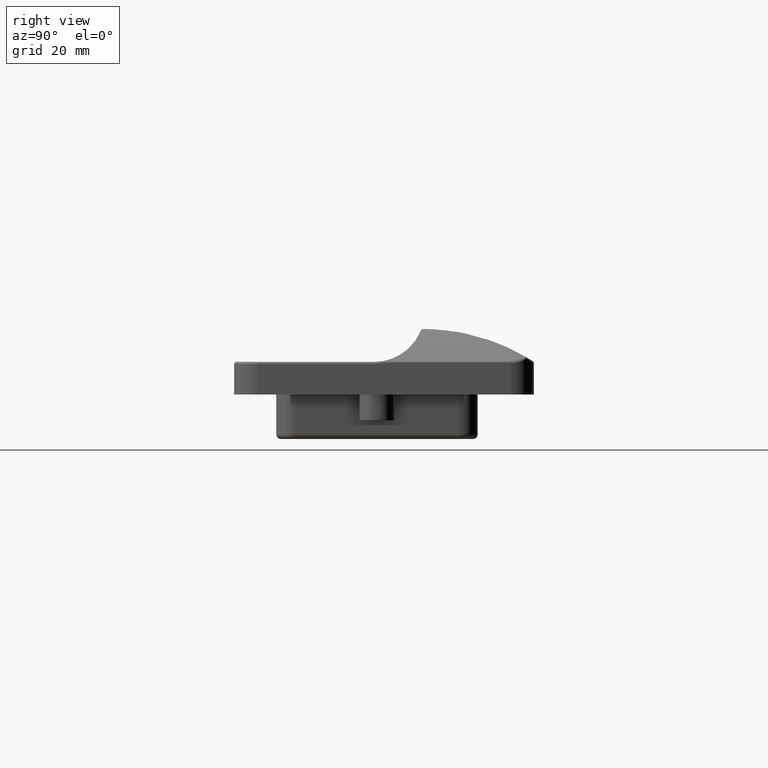
[diagram: clean part render]
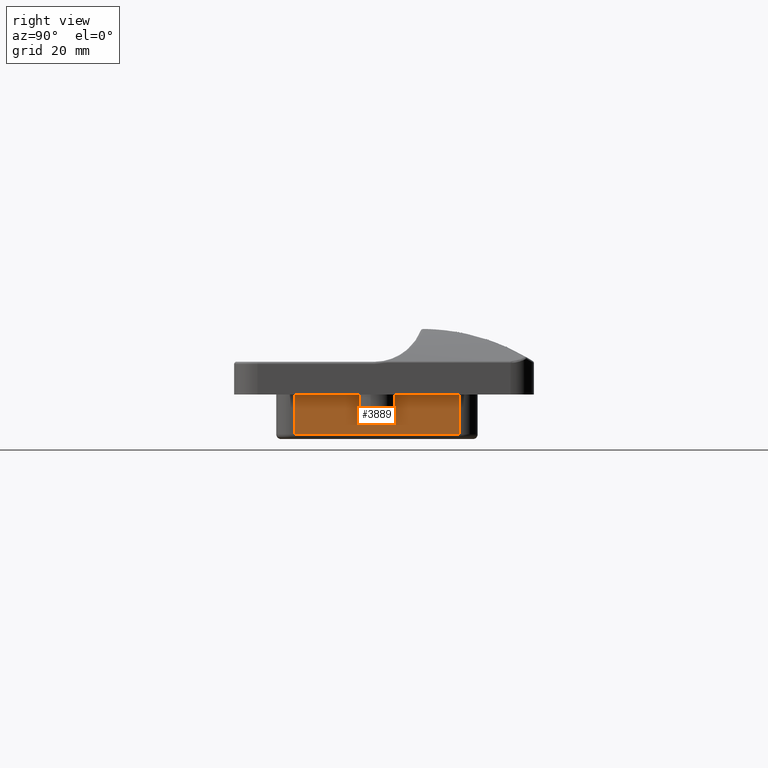
[diagram: same view with one face highlighted and labeled with its STEP entity id]
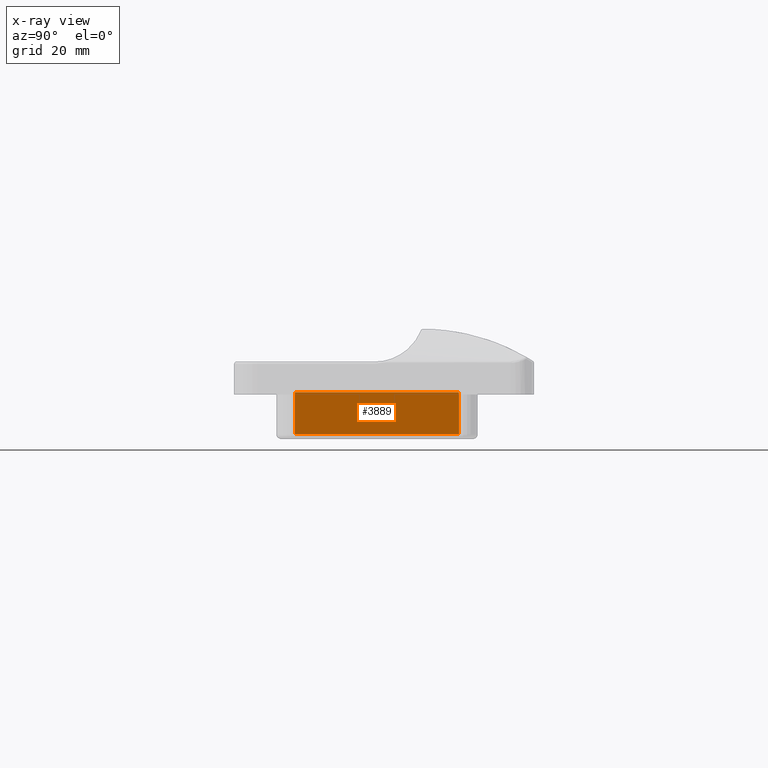
[diagram: x-ray of the same camera — body ghosted, the highlighted face saturated]
A machine part, right view. The second image highlights one B-rep face of the part: STEP entity #3889.
The next image is the same camera in x-ray: the body ghosted, the highlighted face saturated — about 0% of this face is hidden behind the body in this view.
In plain terms, the highlighted planar face has unit normal (1, -0, -0).
Its self-contained STEP definition (entity closure, byte-faithful):
#309=LINE('',#8077,#595);
#316=LINE('',#8160,#602);
#322=LINE('',#8210,#608);
#349=LINE('',#8305,#635);
#434=LINE('',#8544,#720);
#436=LINE('',#8548,#722);
#595=VECTOR('',#4934,8.78585453113767);
#602=VECTOR('',#4983,8.78586803612646);
#608=VECTOR('',#5009,17.4282774327358);
#635=VECTOR('',#5118,35.);
#720=VECTOR('',#5377,9.);
#722=VECTOR('',#5383,9.);
#804=PLANE('',#4295);
#1034=FACE_OUTER_BOUND('',#1278,.T.);
#1278=EDGE_LOOP('',(#3618,#3619,#3620,#3621,#3622,#3623));
#1807=VERTEX_POINT('',#8074);
#1808=VERTEX_POINT('',#8076);
#1813=VERTEX_POINT('',#8106);
#1821=VERTEX_POINT('',#8156);
#1849=VERTEX_POINT('',#8295);
#1851=VERTEX_POINT('',#8301);
#2285=EDGE_CURVE('',#1807,#1808,#309,.T.);
#2308=EDGE_CURVE('',#1813,#1821,#316,.T.);
#2320=EDGE_CURVE('',#1808,#1813,#322,.T.);
#2368=EDGE_CURVE('',#1849,#1851,#349,.T.);
#2488=EDGE_CURVE('',#1821,#1849,#434,.T.);
#2490=EDGE_CURVE('',#1807,#1851,#436,.T.);
#3618=ORIENTED_EDGE('',*,*,#2368,.F.);
#3619=ORIENTED_EDGE('',*,*,#2488,.F.);
#3620=ORIENTED_EDGE('',*,*,#2308,.F.);
#3621=ORIENTED_EDGE('',*,*,#2320,.F.);
#3622=ORIENTED_EDGE('',*,*,#2285,.F.);
#3623=ORIENTED_EDGE('',*,*,#2490,.T.);
#3889=ADVANCED_FACE('',(#1034),#804,.T.);
#4295=AXIS2_PLACEMENT_3D('',#8549,#5384,#5385);
#4934=DIRECTION('',(3.80647894157197E-16,1.,1.85037170770859E-16));
#4983=DIRECTION('',(3.80647894157197E-16,1.,1.85037170770859E-16));
#5009=DIRECTION('',(3.80647894157197E-16,1.,1.85037170770859E-16));
#5118=DIRECTION('',(-3.80647894157197E-16,-1.,-1.85037170770859E-16));
#5377=DIRECTION('',(0.,2.22044604925031E-16,-1.));
#5383=DIRECTION('',(0.,2.22044604925031E-16,-1.));
#5384=DIRECTION('center_axis',(1.,-3.80647894157197E-16,-8.45208112736799E-32));
#5385=DIRECTION('ref_axis',(-7.105427357601E-16,-1.,-1.88737914186277E-16));
#8074=CARTESIAN_POINT('',(56.25,-19.,0.500000000000004));
#8076=CARTESIAN_POINT('',(56.25,-10.2141454688623,0.500000000000006));
#8077=CARTESIAN_POINT('',(56.25,7.24999999999999,0.500000000000009));
#8106=CARTESIAN_POINT('',(56.25,7.21413196387353,0.500000000000009));
#8156=CARTESIAN_POINT('',(56.25,16.,0.500000000000011));
#8160=CARTESIAN_POINT('',(56.25,7.24999999999999,0.500000000000009));
#8210=CARTESIAN_POINT('',(56.25,7.24999999999999,0.500000000000009));
#8295=CARTESIAN_POINT('',(56.25,16.,-8.49999999999999));
#8301=CARTESIAN_POINT('',(56.25,-19.,-8.49999999999999));
#8305=CARTESIAN_POINT('',(56.25,7.25,-8.49999999999999));
#8544=CARTESIAN_POINT('',(56.25,16.,0.500000000000011));
#8548=CARTESIAN_POINT('',(56.25,-19.,0.500000000000004));
#8549=CARTESIAN_POINT('Origin',(56.25,16.,0.500000000000011));